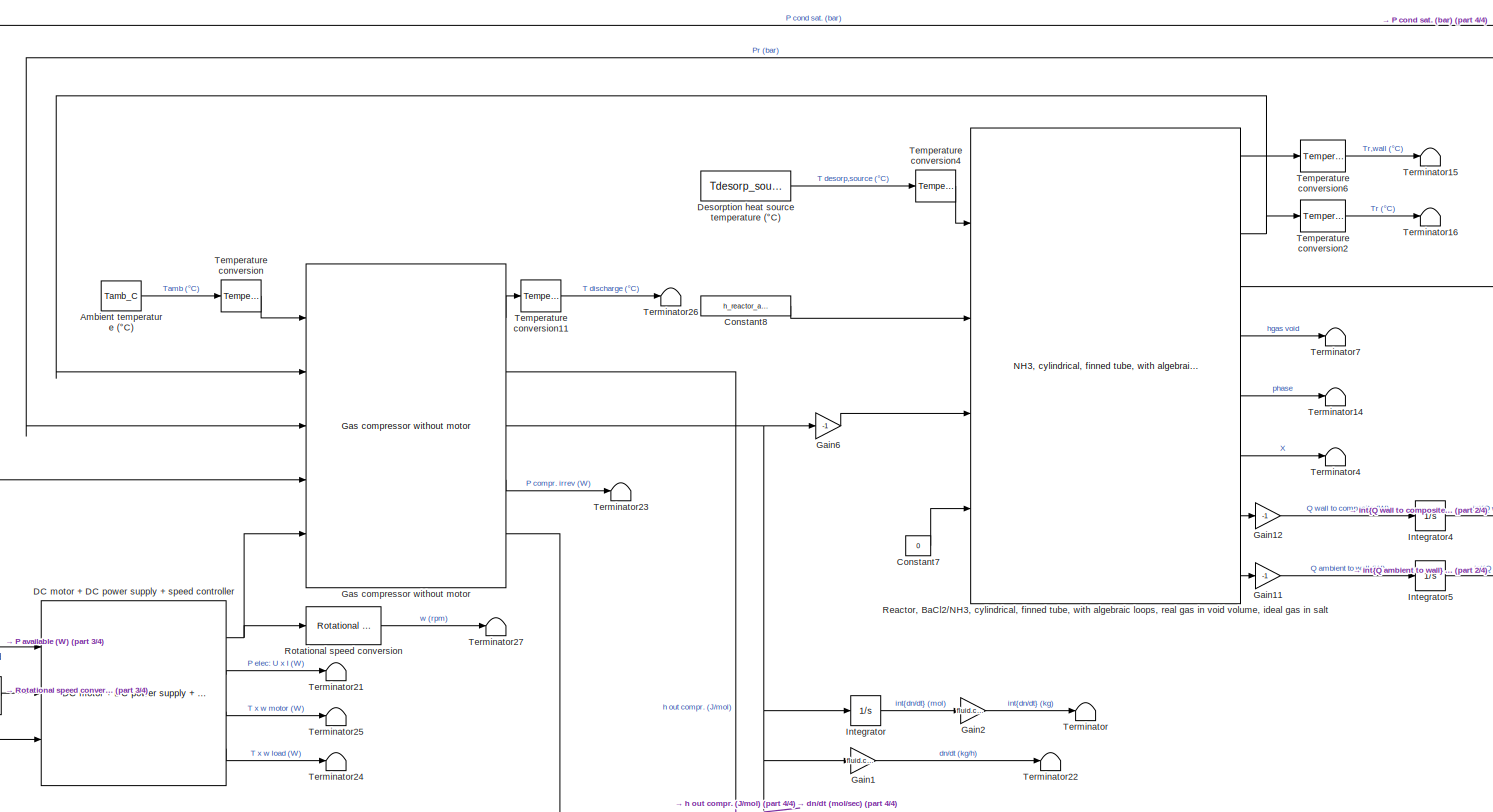
[diagram: root canvas - part 1/4, full width, top band]
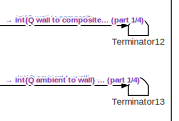
[diagram: root canvas - part 2/4, middle right region]
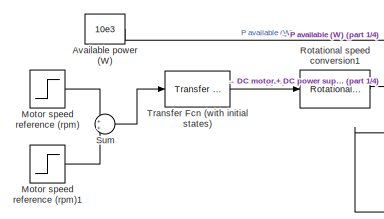
[diagram: root canvas - part 3/4, middle left region]
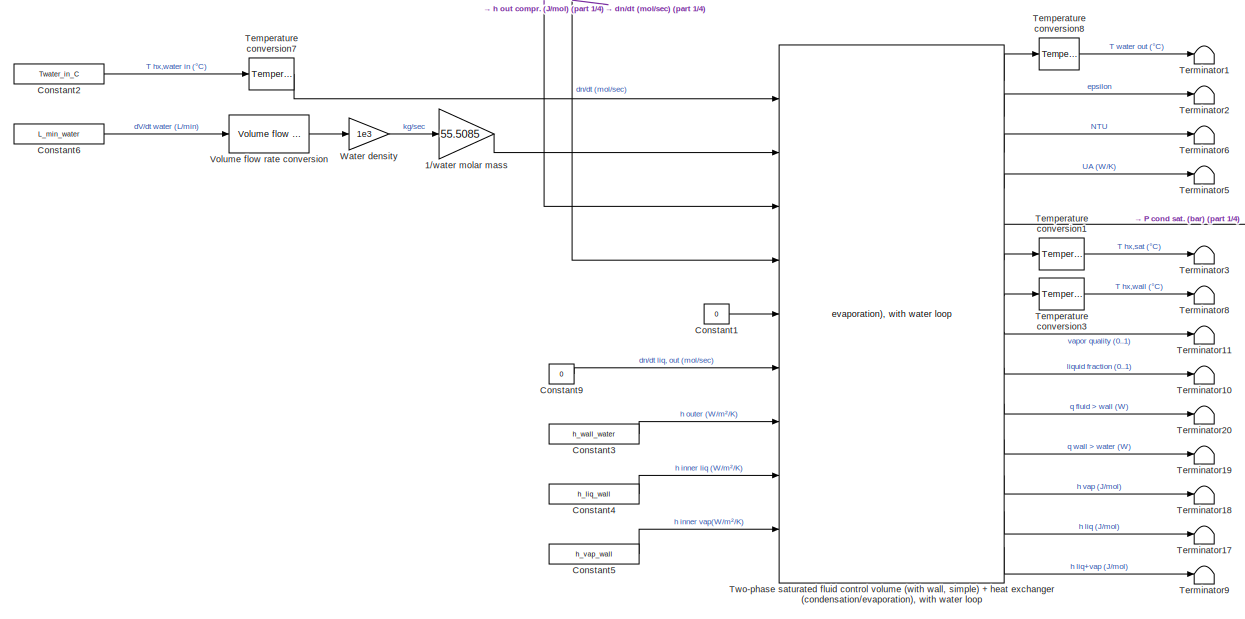
[diagram: root canvas - part 4/4, bottom center region]
MODEL slx_c1c51e0a211a
KIND model
CONFIG AbsTol = auto
CONFIG EnableMultiTasking = off
CONFIG FixedStep = auto
CONFIG MaxStep = 0.1
CONFIG MinStep = auto
CONFIG RelTol = 5e-6
CONFIG SampleTimeConstraint = Unconstrained
CONFIG Solver = ode23tb
CONFIG SolverName = ode23tb
CONFIG StartTime = 0.0
CONFIG StopTime = tEndSimul
BLOCK [Gain] 1//water molar mass
  Gain = 55.5085
  OutDataTypeStr = Inherit: Inherit via internal rule
  ParamDataTypeStr = Inherit: Inherit via internal rule
  SaturateOnIntegerOverflow = off
BLOCK [Constant] Ambient temperature (°C)
  Value = Tamb_C
BLOCK [Constant] Available power (W)
  Value = 10e3
BLOCK [Constant] Constant1
  Value = 0
BLOCK [Constant] Constant2
  Value = Twater_in_C
BLOCK [Constant] Constant3
  Value = h_wall_water
BLOCK [Constant] Constant4
  Value = h_liq_wall
BLOCK [Constant] Constant5
  Value = h_vap_wall
BLOCK [Constant] Constant6
  Value = L_min_water
BLOCK [Constant] Constant7
  Value = 0
BLOCK [Constant] Constant8
  Value = h_reactor_air
BLOCK [Constant] Constant9
  Value = 0
BLOCK [Reference] DC motor + DC power supply + speed controller  REF=thermochemical/Motors/DC motor + DC power supply +   (lib defined in slx_f9e0643dc704)
speed controller
  Ports = [3, 4]
  SourceBlock = thermochemical/Motors/DC motor + DC power supply + \nspeed controller
  SourceProductName = @ Thermochemical
  SourceType = dc_motor_plus_speed_controller_plus_DC_power_source
BLOCK [Constant] Desorption heat source temperature (°C)
  Value = Tdesorp_source_C
BLOCK [Gain] Gain1
  Gain = fluid.constants.Molar_mass*3600
  OutDataTypeStr = Inherit: Inherit via internal rule
  ParamDataTypeStr = Inherit: Inherit via internal rule
  SaturateOnIntegerOverflow = off
BLOCK [Gain] Gain11
  Gain = -1
  OutDataTypeStr = Inherit: Inherit via internal rule
  ParamDataTypeStr = Inherit: Inherit via internal rule
  SaturateOnIntegerOverflow = off
BLOCK [Gain] Gain12
  Gain = -1
  OutDataTypeStr = Inherit: Inherit via internal rule
  ParamDataTypeStr = Inherit: Inherit via internal rule
  SaturateOnIntegerOverflow = off
BLOCK [Gain] Gain2
  Gain = fluid.constants.Molar_mass
  OutDataTypeStr = Inherit: Inherit via internal rule
  ParamDataTypeStr = Inherit: Inherit via internal rule
  SaturateOnIntegerOverflow = off
BLOCK [Gain] Gain6
  Gain = -1
  OutDataTypeStr = Inherit: Inherit via internal rule
  ParamDataTypeStr = Inherit: Inherit via internal rule
  SaturateOnIntegerOverflow = off
BLOCK [Reference] Gas compressor without motor  REF=thermochemical/Compression/Gas compressor without motor  (lib defined in slx_f9e0643dc704)
  Ports = [5, 5]
  SourceBlock = thermochemical/Compression/Gas compressor without motor
  SourceProductName = @ Thermochemical
BLOCK [Integrator] Integrator
  Ports = [1, 1]
BLOCK [Integrator] Integrator4
  Ports = [1, 1]
BLOCK [Integrator] Integrator5
  Ports = [1, 1]
BLOCK [Step] Motor speed reference (rpm)
  After = rpm_ref_01
  Before = rpm_ref_init
  SampleTime = 0
  Time = rpm_ref_01_time
BLOCK [Step] Motor speed reference (rpm)1
  After = rpm_ref_02-rpm_ref_01
  SampleTime = 0
  Time = rpm_ref_02_time
BLOCK [Reference] Reactor, BaCl2//NH3, cylindrical, finned tube, with algebraic loops, real gas in void volume, ideal gas in salt  REF=thermochemical/Reactors/Reactor, BaCl2//NH3, with algebraic loops,  (lib defined in slx_f9e0643dc704)
real gas in void volume, ideal gas in salt/Reactor, BaCl2//NH3, cylindrical, finned tube, with algebraic loops,
real gas in void volume, ideal gas in salt
  Ports = [4, 8]
  SourceBlock = thermochemical/Reactors/Reactor, BaCl2//NH3, with algebraic loops,\nreal gas in void volume, ideal gas in salt/Reactor, BaCl2//NH3, cylindrical, finned tube, with algebraic loops,\nreal gas in void volume, ideal gas in salt
  SourceProductName = @ Thermochemical
  SourceType = SubSystem
BLOCK [Reference] Rotational speed conversion  REF=thermochemical/Conversions/Rotational speed  (lib defined in slx_f9e0643dc704)
conversion
  Ports = [1, 1]
  SourceBlock = thermochemical/Conversions/Rotational speed\nconversion
  SourceProductName = @ Thermochemical
  SourceType = convert_pressure
BLOCK [Reference] Rotational speed conversion1  REF=thermochemical/Conversions/Rotational speed  (lib defined in slx_f9e0643dc704)
conversion
  Ports = [1, 1]
  SourceBlock = thermochemical/Conversions/Rotational speed\nconversion
  SourceProductName = @ Thermochemical
  SourceType = convert_pressure
BLOCK [Sum] Sum
  IconShape = round
  InputSameDT = off
  OutDataTypeStr = Inherit: Inherit via internal rule
  Ports = [2, 1]
  SaturateOnIntegerOverflow = off
BLOCK [Reference] Temperature conversion  REF=thermochemical/Conversions/Temperature  (lib defined in slx_f9e0643dc704)
conversion
  Ports = [1, 1]
  SourceBlock = thermochemical/Conversions/Temperature\nconversion
  SourceProductName = @ Thermochemical
  SourceType = convert_temperature
BLOCK [Reference] Temperature conversion1  REF=thermochemical/Conversions/Temperature  (lib defined in slx_f9e0643dc704)
conversion
  Ports = [1, 1]
  SourceBlock = thermochemical/Conversions/Temperature\nconversion
  SourceProductName = @ Thermochemical
  SourceType = convert_temperature
BLOCK [Reference] Temperature conversion11  REF=thermochemical/Conversions/Temperature  (lib defined in slx_f9e0643dc704)
conversion
  Ports = [1, 1]
  SourceBlock = thermochemical/Conversions/Temperature\nconversion
  SourceProductName = @ Thermochemical
  SourceType = convert_temperature
BLOCK [Reference] Temperature conversion2  REF=thermochemical/Conversions/Temperature  (lib defined in slx_f9e0643dc704)
conversion
  Ports = [1, 1]
  SourceBlock = thermochemical/Conversions/Temperature\nconversion
  SourceProductName = @ Thermochemical
  SourceType = convert_temperature
BLOCK [Reference] Temperature conversion3  REF=thermochemical/Conversions/Temperature  (lib defined in slx_f9e0643dc704)
conversion
  Ports = [1, 1]
  SourceBlock = thermochemical/Conversions/Temperature\nconversion
  SourceProductName = @ Thermochemical
  SourceType = convert_temperature
BLOCK [Reference] Temperature conversion4  REF=thermochemical/Conversions/Temperature  (lib defined in slx_f9e0643dc704)
conversion
  Ports = [1, 1]
  SourceBlock = thermochemical/Conversions/Temperature\nconversion
  SourceProductName = @ Thermochemical
  SourceType = convert_temperature
BLOCK [Reference] Temperature conversion6  REF=thermochemical/Conversions/Temperature  (lib defined in slx_f9e0643dc704)
conversion
  Ports = [1, 1]
  SourceBlock = thermochemical/Conversions/Temperature\nconversion
  SourceProductName = @ Thermochemical
  SourceType = convert_temperature
BLOCK [Reference] Temperature conversion7  REF=thermochemical/Conversions/Temperature  (lib defined in slx_f9e0643dc704)
conversion
  Ports = [1, 1]
  SourceBlock = thermochemical/Conversions/Temperature\nconversion
  SourceProductName = @ Thermochemical
  SourceType = convert_temperature
BLOCK [Reference] Temperature conversion8  REF=thermochemical/Conversions/Temperature  (lib defined in slx_f9e0643dc704)
conversion
  Ports = [1, 1]
  SourceBlock = thermochemical/Conversions/Temperature\nconversion
  SourceProductName = @ Thermochemical
  SourceType = convert_temperature
BLOCK [Terminator] Terminator
BLOCK [Terminator] Terminator1
BLOCK [Terminator] Terminator10
BLOCK [Terminator] Terminator11
BLOCK [Terminator] Terminator12
BLOCK [Terminator] Terminator13
BLOCK [Terminator] Terminator14
BLOCK [Terminator] Terminator15
BLOCK [Terminator] Terminator16
BLOCK [Terminator] Terminator17
BLOCK [Terminator] Terminator18
BLOCK [Terminator] Terminator19
BLOCK [Terminator] Terminator2
BLOCK [Terminator] Terminator20
BLOCK [Terminator] Terminator21
BLOCK [Terminator] Terminator22
BLOCK [Terminator] Terminator23
BLOCK [Terminator] Terminator24
BLOCK [Terminator] Terminator25
BLOCK [Terminator] Terminator26
BLOCK [Terminator] Terminator27
BLOCK [Terminator] Terminator3
BLOCK [Terminator] Terminator4
BLOCK [Terminator] Terminator5
BLOCK [Terminator] Terminator6
BLOCK [Terminator] Terminator7
BLOCK [Terminator] Terminator8
BLOCK [Terminator] Terminator9
BLOCK [Reference] Transfer Fcn (with initial states)  REF=simulink_extras/Additional
Linear/Transfer Fcn
(with initial states)
  Ports = [1, 1]
  SourceBlock = simulink_extras/Additional\nLinear/Transfer Fcn\n(with initial states)
  SourceProductBaseCode = SL
  SourceProductName = Simulink
  SourceType = Transfer Function with Initial States
BLOCK [Reference] Two-phase saturated fluid control volume (with wall, simple) + heat exchanger (condensation//evaporation), with water loop  REF=thermochemical/Control volumes/Two-phase saturated fluid control volume (with wall, simple) +  (lib defined in slx_f9e0643dc704)
heat exchanger (condensation//evaporation), with water loop
  Ports = [9, 14]
  SourceBlock = thermochemical/Control volumes/Two-phase saturated fluid control volume (with wall, simple) +\nheat exchanger (condensation//evaporation), with water loop
  SourceProductName = @ Thermochemical
  SourceType = SubSystem
BLOCK [Reference] Volume flow rate conversion  REF=thermochemical/Conversions/Volume flow rate  (lib defined in slx_f9e0643dc704)
conversion
  Ports = [1, 1]
  SourceBlock = thermochemical/Conversions/Volume flow rate\nconversion
  SourceProductName = @ Thermochemical
  SourceType = convert_volume_flow
BLOCK [Gain] Water density
  Gain = 1e3
  OutDataTypeStr = Inherit: Inherit via internal rule
  ParamDataTypeStr = Inherit: Inherit via internal rule
  SaturateOnIntegerOverflow = off
LINE 1//water molar mass:1 -> Two-phase saturated fluid control volume (with wall, simple) + heat exchanger (condensation//evaporation), with water loop:2
LINE Ambient temperature (°C):1 -> Temperature conversion:1
LINE Available power (W):1 -> DC motor + DC power supply + speed controller:1
LINE Constant1:1 -> Two-phase saturated fluid control volume (with wall, simple) + heat exchanger (condensation//evaporation), with water loop:5
LINE Constant2:1 -> Temperature conversion7:1
LINE Constant3:1 -> Two-phase saturated fluid control volume (with wall, simple) + heat exchanger (condensation//evaporation), with water loop:7
LINE Constant4:1 -> Two-phase saturated fluid control volume (with wall, simple) + heat exchanger (condensation//evaporation), with water loop:8
LINE Constant5:1 -> Two-phase saturated fluid control volume (with wall, simple) + heat exchanger (condensation//evaporation), with water loop:9
LINE Constant6:1 -> Volume flow rate conversion:1
LINE Constant7:1 -> Reactor, BaCl2//NH3, cylindrical, finned tube, with algebraic loops, real gas in void volume, ideal gas in salt:4
LINE Constant8:1 -> Reactor, BaCl2//NH3, cylindrical, finned tube, with algebraic loops, real gas in void volume, ideal gas in salt:2
LINE Constant9:1 -> Two-phase saturated fluid control volume (with wall, simple) + heat exchanger (condensation//evaporation), with water loop:6
NET DC motor + DC power supply + speed controller:1 -> Gas compressor without motor:5, Rotational speed conversion:1
LINE DC motor + DC power supply + speed controller:2 -> Terminator21:1
LINE DC motor + DC power supply + speed controller:3 -> Terminator25:1
LINE DC motor + DC power supply + speed controller:4 -> Terminator24:1
LINE Desorption heat source temperature (°C):1 -> Temperature conversion4:1
LINE Gain11:1 -> Integrator5:1
LINE Gain12:1 -> Integrator4:1
LINE Gain1:1 -> Terminator22:1
LINE Gain2:1 -> Terminator:1
LINE Gain6:1 -> Reactor, BaCl2//NH3, cylindrical, finned tube, with algebraic loops, real gas in void volume, ideal gas in salt:3
LINE Gas compressor without motor:1 -> Temperature conversion11:1
LINE Gas compressor without motor:2 -> Two-phase saturated fluid control volume (with wall, simple) + heat exchanger (condensation//evaporation), with water loop:3
NET Gas compressor without motor:3 -> Gain1:1, Gain6:1, Integrator:1, Two-phase saturated fluid control volume (with wall, simple) + heat exchanger (condensation//evaporation), with water loop:4
LINE Gas compressor without motor:4 -> Terminator23:1
LINE Gas compressor without motor:5 -> DC motor + DC power supply + speed controller:3
LINE Integrator4:1 -> Terminator12:1
LINE Integrator5:1 -> Terminator13:1
LINE Integrator:1 -> Gain2:1
LINE Motor speed reference (rpm)1:1 -> Sum:2
LINE Motor speed reference (rpm):1 -> Sum:1
LINE Reactor, BaCl2//NH3, cylindrical, finned tube, with algebraic loops, real gas in void volume, ideal gas in salt:1 -> Temperature conversion6:1
NET Reactor, BaCl2//NH3, cylindrical, finned tube, with algebraic loops, real gas in void volume, ideal gas in salt:2 -> Gas compressor without motor:2, Temperature conversion2:1
LINE Reactor, BaCl2//NH3, cylindrical, finned tube, with algebraic loops, real gas in void volume, ideal gas in salt:3 -> Gas compressor without motor:3
LINE Reactor, BaCl2//NH3, cylindrical, finned tube, with algebraic loops, real gas in void volume, ideal gas in salt:4 -> Terminator7:1
LINE Reactor, BaCl2//NH3, cylindrical, finned tube, with algebraic loops, real gas in void volume, ideal gas in salt:5 -> Terminator14:1
LINE Reactor, BaCl2//NH3, cylindrical, finned tube, with algebraic loops, real gas in void volume, ideal gas in salt:6 -> Terminator4:1
LINE Reactor, BaCl2//NH3, cylindrical, finned tube, with algebraic loops, real gas in void volume, ideal gas in salt:7 -> Gain12:1
LINE Reactor, BaCl2//NH3, cylindrical, finned tube, with algebraic loops, real gas in void volume, ideal gas in salt:8 -> Gain11:1
LINE Rotational speed conversion1:1 -> DC motor + DC power supply + speed controller:2
LINE Rotational speed conversion:1 -> Terminator27:1
LINE Sum:1 -> Transfer Fcn (with initial states):1
LINE Temperature conversion11:1 -> Terminator26:1
LINE Temperature conversion1:1 -> Terminator3:1
LINE Temperature conversion2:1 -> Terminator16:1
LINE Temperature conversion3:1 -> Terminator8:1
LINE Temperature conversion4:1 -> Reactor, BaCl2//NH3, cylindrical, finned tube, with algebraic loops, real gas in void volume, ideal gas in salt:1
LINE Temperature conversion6:1 -> Terminator15:1
LINE Temperature conversion7:1 -> Two-phase saturated fluid control volume (with wall, simple) + heat exchanger (condensation//evaporation), with water loop:1
LINE Temperature conversion8:1 -> Terminator1:1
LINE Temperature conversion:1 -> Gas compressor without motor:1
LINE Transfer Fcn (with initial states):1 -> Rotational speed conversion1:1
LINE Two-phase saturated fluid control volume (with wall, simple) + heat exchanger (condensation//evaporation), with water loop:1 -> Temperature conversion8:1
LINE Two-phase saturated fluid control volume (with wall, simple) + heat exchanger (condensation//evaporation), with water loop:10 -> Terminator20:1
LINE Two-phase saturated fluid control volume (with wall, simple) + heat exchanger (condensation//evaporation), with water loop:11 -> Terminator19:1
LINE Two-phase saturated fluid control volume (with wall, simple) + heat exchanger (condensation//evaporation), with water loop:12 -> Terminator18:1
LINE Two-phase saturated fluid control volume (with wall, simple) + heat exchanger (condensation//evaporation), with water loop:13 -> Terminator17:1
LINE Two-phase saturated fluid control volume (with wall, simple) + heat exchanger (condensation//evaporation), with water loop:14 -> Terminator9:1
LINE Two-phase saturated fluid control volume (with wall, simple) + heat exchanger (condensation//evaporation), with water loop:2 -> Terminator2:1
LINE Two-phase saturated fluid control volume (with wall, simple) + heat exchanger (condensation//evaporation), with water loop:3 -> Terminator6:1
LINE Two-phase saturated fluid control volume (with wall, simple) + heat exchanger (condensation//evaporation), with water loop:4 -> Terminator5:1
LINE Two-phase saturated fluid control volume (with wall, simple) + heat exchanger (condensation//evaporation), with water loop:5 -> Gas compressor without motor:4
LINE Two-phase saturated fluid control volume (with wall, simple) + heat exchanger (condensation//evaporation), with water loop:6 -> Temperature conversion1:1
LINE Two-phase saturated fluid control volume (with wall, simple) + heat exchanger (condensation//evaporation), with water loop:7 -> Temperature conversion3:1
LINE Two-phase saturated fluid control volume (with wall, simple) + heat exchanger (condensation//evaporation), with water loop:8 -> Terminator11:1
LINE Two-phase saturated fluid control volume (with wall, simple) + heat exchanger (condensation//evaporation), with water loop:9 -> Terminator10:1
LINE Volume flow rate conversion:1 -> Water density:1
LINE Water density:1 -> 1//water molar mass:1
note: NET lines group one-source signal fan-out (src -> all destinations, sorted); 1:1 wires keep LINE
